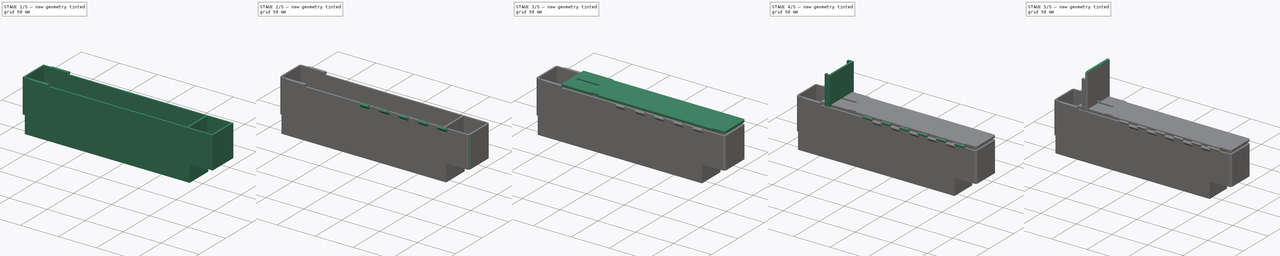
[diagram: build sequence overview — one tinted view per stage of 5, left to right]
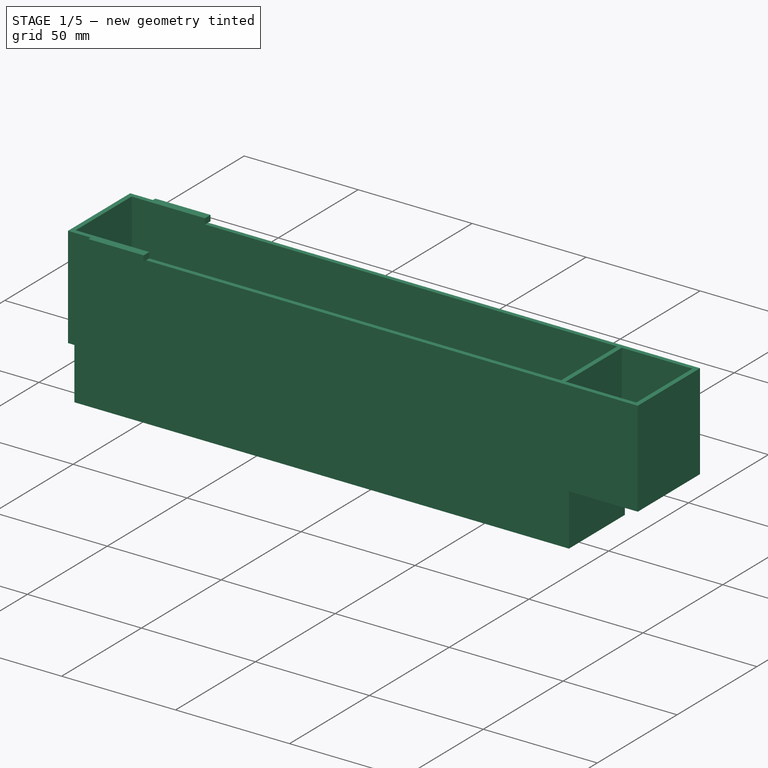
[diagram: stage 1 of 5 — iso view after this stage's code; geometry added in this stage tinted green]
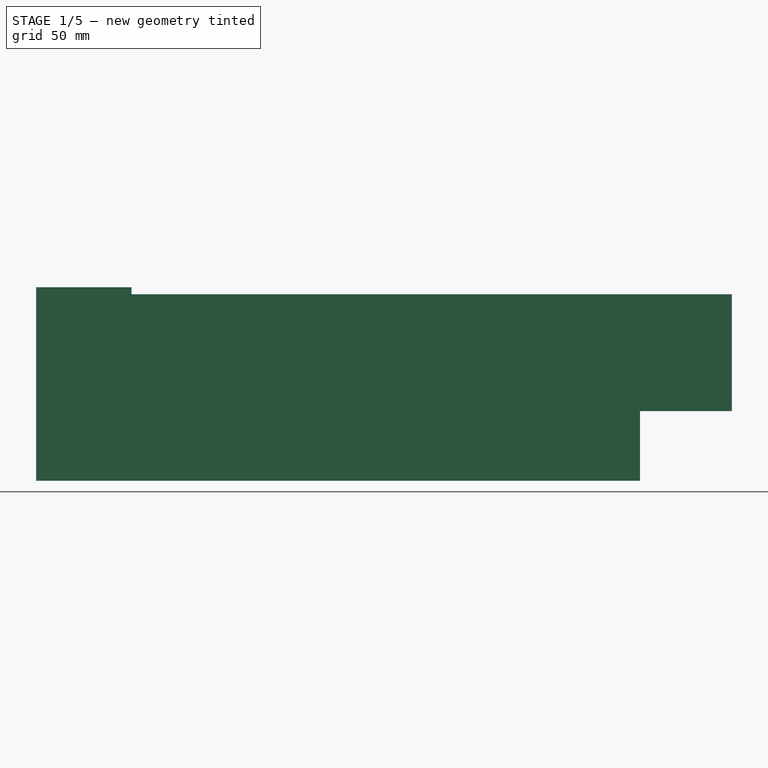
[diagram: stage 1 of 5 — front view after this stage's code; geometry added in this stage tinted green]
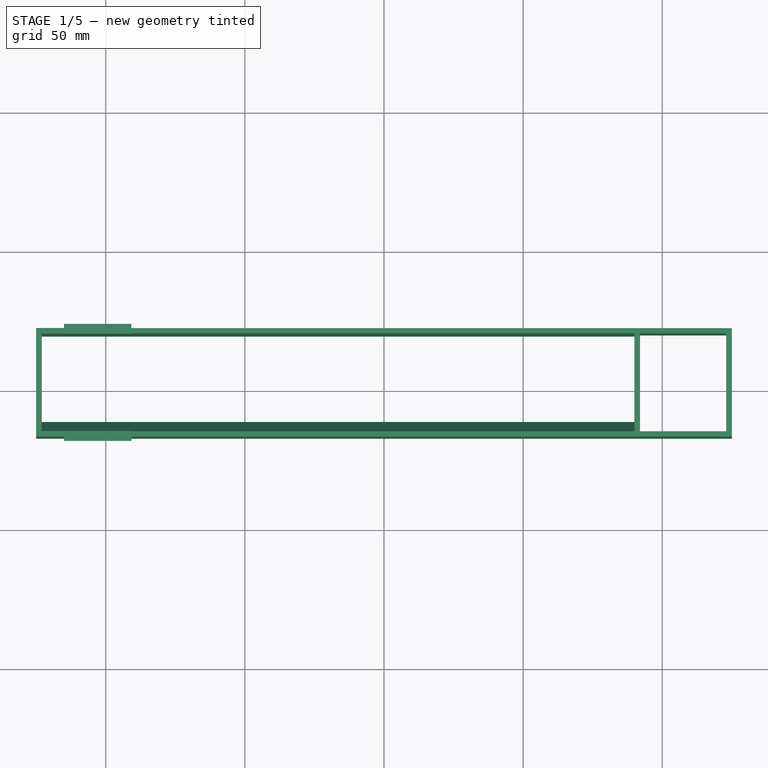
[diagram: stage 1 of 5 — top view after this stage's code; geometry added in this stage tinted green]
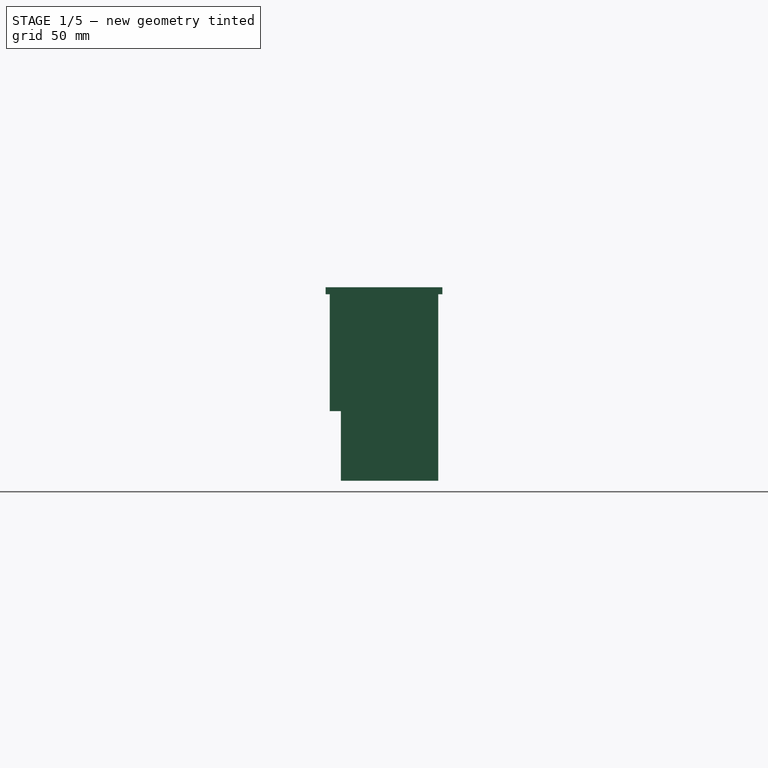
[diagram: stage 1 of 5 — right view after this stage's code; geometry added in this stage tinted green]
FCSTD DOCUMENT  (FreeCAD 0.20R29603 (Git))
Label: mapBox
License: All rights reserved
LicenseURL: http://en.wikipedia.org/wiki/All_rights_reserved
objects: Sketcher::SketchObject×12, PartDesign::Pad×9, PartDesign::Fillet×5, Part::Part2DObjectPython×3, PartDesign::Body×3, PartDesign::LinearPattern×2, Spreadsheet::Sheet×1, PartDesign::Hole×1, PartDesign::Pocket×1, PartDesign::Plane×1, PartDesign::SubtractiveBox×1
note: 55 computed .brp shape members not serialized (recipe doc carries the construction recipe); baked Part::Feature solids carry a one-line shape summary decoded from their .brp

FEATURE [Part::Part2DObjectPython] Clone2D002  label="mastersketch (2D)002"  # Draft 2D object (typed FeaturePython)
  Fuse = false
  Objects = -> [Sketch]
  Scale = (1,1,1)
FEATURE [Sketcher::SketchObject] Sketch005
  ExternalGeometry = -> [Clone2D002]
  FullyConstrained = true
  MapMode = 5
  Support = -> [XY_Plane002]
  expr: Constraints[10] = <<data>>.lidAnchorWidth
  expr: Constraints[11] = <<data>>.bodyWallWidth
  expr: Constraints[14] = <<data>>.bodyWallWidth
  expr: Constraints[31] = <<data>>.lidLockLength - <<data>>.lidLockAnchorLength
  sketch-geometry (14):
    g0: LineSegment StartX=-115 StartY=-19 StartZ=0 EndX=-90.75 EndY=-19 EndZ=0
    g1: LineSegment StartX=-90.75 StartY=-19 StartZ=0 EndX=-90.75 EndY=-17.5 EndZ=0
    g2: LineSegment StartX=-90.8 StartY=21.5 StartZ=0 EndX=-90.8 EndY=23 EndZ=0
    g3: LineSegment StartX=-90.8 StartY=23 StartZ=0 EndX=-115 EndY=23 EndZ=0
    g4: LineSegment StartX=-125 StartY=21.5 StartZ=0 EndX=-125 EndY=-17.5 EndZ=0
    g5: LineSegment StartX=-123 StartY=-15.5 StartZ=0 EndX=-123 EndY=19.5 EndZ=0
    g6: LineSegment StartX=-123 StartY=19.5 StartZ=0 EndX=-90.8 EndY=19.5 EndZ=0
    g7: LineSegment StartX=-90.8 StartY=19.5 StartZ=0 EndX=-90.8 EndY=21.5 EndZ=0
    g8: LineSegment StartX=-123 StartY=-15.5 StartZ=0 EndX=-90.75 EndY=-15.5 EndZ=0
    g9: LineSegment StartX=-90.75 StartY=-15.5 StartZ=0 EndX=-90.75 EndY=-17.5 EndZ=0
    g10: LineSegment StartX=-125 StartY=-17.5 StartZ=0 EndX=-115 EndY=-17.5 EndZ=0
    g11: LineSegment StartX=-115 StartY=-17.5 StartZ=0 EndX=-115 EndY=-19 EndZ=0
    g12: LineSegment StartX=-115 StartY=23 StartZ=0 EndX=-115 EndY=21.5 EndZ=0
    g13: LineSegment StartX=-115 StartY=21.5 StartZ=0 EndX=-125 EndY=21.5 EndZ=0
  constraints (40):
    c: Horizontal(g0)
    c: Coincident(g0,g1)
    c: PointOnObject(g1,g-6)
    c: Vertical(g1)
    c: PointOnObject(g2,g-5)
    c: Vertical(g2)
    c: Coincident(g2,g3)
    c: Horizontal(g3)
    c: Vertical(g4)
    c: Equal(g1,g2)
    c: DistanceY(g1,g1) = 1.5
    c: DistanceX(g-5,g5) = 2
    c: DistanceX(g2,g-3) = 0.8
    c: Symmetric(g5,g5,g-7)
    c: DistanceY(g-6,g5) = 2
    c: Coincident(g5,g6)
    c: Horizontal(g6)
    c: Coincident(g6,g7)
    c: Coincident(g7,g2)
    c: Vertical(g7)
    c: Coincident(g5,g8)
    c: Horizontal(g8)
    c: Coincident(g8,g9)
    c: Coincident(g9,g1)
    c: Vertical(g9)
    c: Coincident(g-6,g10)
    c: PointOnObject(g10,g-6)
    c: Coincident(g10,g11)
    c: Vertical(g11)
    c: Coincident(g0,g11)
    c: DistanceX(g0,g-3) = 0.75
    c: DistanceX(g10,g10) = 10
    c: PointOnObject(g12,g-5)
    c: Vertical(g12)
    c: Coincident(g12,g13)
    c: Coincident(g13,g-5)
    c: Coincident(g4,g10)
    c: Coincident(g3,g12)
    c: PointOnObject(g4,g13)
    c: Vertical(g10,g12)
FEATURE [PartDesign::Pad] Pad003  label="TopWitchAnchor"
  Direction = (0,0,1)
  Length = 2.5
  Length2 = 10
  Profile = -> Sketch005
  ReferenceAxis = -> Sketch005 [N_Axis]
  Reversed = true
  Type = 0
  expr: Length = <<data>>.lidAnchorThickness
FEATURE [Sketcher::SketchObject] Sketch006
  AttachmentOffset = pos=(0,0,-2.5) rot=(0,0,1;0rad)
  ExternalGeometry = -> [Pad003,Clone2D002]
  FullyConstrained = false
  MapMode = 5
  Placement = pos=(0,0,-2.5) rot=(0,0,1;0rad)
  Support = -> [XY_Plane002]
  expr: .AttachmentOffset.Base.z = <<data>>.lidThickness * -1
  expr: Constraints[18] = <<data>>.bodyWallWidth
  sketch-geometry (12):
    g0: LineSegment StartX=125 StartY=21.5 StartZ=0 EndX=-125 EndY=21.5 EndZ=0
    g1: LineSegment StartX=-125 StartY=21.5 StartZ=0 EndX=-125 EndY=-17.5 EndZ=0
    g2: LineSegment StartX=-125 StartY=-17.5 StartZ=0 EndX=125 EndY=-17.5 EndZ=0
    g3: LineSegment StartX=125 StartY=-17.5 StartZ=0 EndX=125 EndY=21.5 EndZ=0
    g4: LineSegment StartX=123 StartY=19.6154 StartZ=0 EndX=92 EndY=19.6154 EndZ=0
    g5: LineSegment StartX=-123 StartY=19.6154 StartZ=0 EndX=-123 EndY=-15.5493 EndZ=0
    g6: LineSegment StartX=-123 StartY=-15.5493 StartZ=0 EndX=90 EndY=-15.5493 EndZ=0
    g7: LineSegment StartX=123 StartY=-15.5493 StartZ=0 EndX=123 EndY=19.6154 EndZ=0
    g8: LineSegment StartX=92 StartY=-15.5493 StartZ=0 EndX=92 EndY=19.6154 EndZ=0
    g9: LineSegment StartX=90 StartY=-15.5493 StartZ=0 EndX=90 EndY=19.6154 EndZ=0
    g10: LineSegment StartX=90 StartY=19.6154 StartZ=0 EndX=-123 EndY=19.6154 EndZ=0
    g11: LineSegment StartX=92 StartY=-15.5493 StartZ=0 EndX=123 EndY=-15.5493 EndZ=0
  constraints (23):
    c: Coincident(g0,g1)
    c: Coincident(g1,g2)
    c: Coincident(g2,g3)
    c: Coincident(g3,g0)
    c: Horizontal(g0)
    c: Horizontal(g2)
    c: Vertical(g1)
    c: Coincident(g10,g5)
    c: Coincident(g5,g6)
    c: Coincident(g11,g7)
    c: Coincident(g7,g4)
    c: Horizontal(g4)
    c: Horizontal(g6)
    c: Vertical(g5)
    c: Vertical(g7)
    c: Vertical(g8)
    c: PointOnObject(g8,g-6)
    c: Vertical(g9)
    c: DistanceX(g9,g8) = 2
    c: Coincident(g4,g8)
    c: Coincident(g10,g9)
    c: Coincident(g6,g9)
    c: Coincident(g11,g8)
FEATURE [PartDesign::Pad] Pad004  label="Pad004_Sidewalls"
  BaseFeature = -> Pad003
  Direction = (0,0,1)
  Length = 42
  Length2 = 10
  Profile = -> Sketch006
  ReferenceAxis = -> Sketch006 [N_Axis]
  Reversed = true
  Type = 0
  expr: Length = <<data>>.bodyHeight
FEATURE [PartDesign::Body] Body001  label="Lid"
  Group = -> [Clone2D001,Sketch004,Pad002,Fillet002,Fillet004,Sketch007,Pocket,Sketch008,Pad005,LinearPattern]
  Origin = -> Origin001
  Placement = pos=(0,-1e-15,-2.5) rot=(0,0,1;0rad)
  Tip = -> LinearPattern
FEATURE [PartDesign::Plane] DatumPlane
  AttachmentOffset = pos=(0,0,-44.5) rot=(0,0,1;0rad)
  Length = 272.361
  MapMode = 5
  Placement = pos=(0,0,-44.5) rot=(0,0,1;0rad)
  ResizeMode = 0
  Support = -> [XY_Plane002]
  Width = 72.3607
  expr: .AttachmentOffset.Base.z = -1 * (<<data>>.bodyHeight + <<data>>.lidAnchorThickness)
FEATURE [Sketcher::SketchObject] Sketch009
  AttachmentOffset = pos=(0,0,90) rot=(0,0,1;0rad)
  ExternalGeometry = -> [Pad004,Clone2D002]
  FullyConstrained = true
  MapMode = 5
  Placement = pos=(90,-2e-14,2e-14) rot=(0.57735,0.57735,0.57735;2.0944rad)
  Support = -> [YZ_Plane002]
  expr: Constraints[9] = <<data>>.bodyWallWidth
  sketch-geometry (4):
    g0: LineSegment StartX=-13.5 StartY=0 StartZ=0 EndX=-13.5 EndY=-44.5 EndZ=0
    g1: LineSegment StartX=-15.5493 StartY=-44.5 StartZ=0 EndX=-11.5 EndY=-44.5 EndZ=0
    g2: LineSegment StartX=-11.5 StartY=-44.5 StartZ=0 EndX=-15.5493 EndY=-39.6743 EndZ=0
    g3: LineSegment StartX=-15.5493 StartY=-39.6743 StartZ=0 EndX=-15.5493 EndY=-44.5 EndZ=0
  constraints (11):
    c: Coincident(g0,g-4)
    c: PointOnObject(g0,g-3)
    c: Vertical(g0)
    c: Coincident(g-3,g1)
    c: PointOnObject(g1,g-3)
    c: Coincident(g1,g2)
    c: Coincident(g2,g3)
    c: Coincident(g3,g1)
    c: Vertical(g3)
    c: DistanceX(g0,g1) = 2
    c: Angle(g3,g2) = 0.698132
FEATURE [PartDesign::Pad] Pad006  label="Pad006_SlantedEdge"
  BaseFeature = -> Pad004
  Direction = (1,-2e-16,3e-16)
  Length = 214
  Length2 = 10
  Profile = -> Sketch009
  ReferenceAxis = -> Sketch009 [N_Axis]
  Refine = true
  Reversed = true
  Type = 0
FEATURE [Sketcher::SketchObject] Sketch010
  ExternalGeometry = -> [Clone2D002,Pad006]
  FullyConstrained = true
  MapMode = 5
  Placement = pos=(0,0,-44.5) rot=(0,0,1;0rad)
  Support = -> [DatumPlane]
  sketch-geometry (8):
    g0: LineSegment StartX=-125 StartY=21.5 StartZ=0 EndX=92 EndY=21.5 EndZ=0
    g1: LineSegment StartX=92 StartY=21.5 StartZ=0 EndX=92 EndY=-13.5 EndZ=0
    g2: LineSegment StartX=92 StartY=-13.5 StartZ=0 EndX=-125 EndY=-13.5 EndZ=0
    g3: LineSegment StartX=-125 StartY=-13.5 StartZ=0 EndX=-125 EndY=21.5 EndZ=0
    g4: LineSegment StartX=90 StartY=-11.5 StartZ=0 EndX=-123 EndY=-11.5 EndZ=0
    g5: LineSegment StartX=-123 StartY=-11.5 StartZ=0 EndX=-123 EndY=19.6154 EndZ=0
    g6: LineSegment StartX=-123 StartY=19.6154 StartZ=0 EndX=90 EndY=19.6154 EndZ=0
    g7: LineSegment StartX=90 StartY=19.6154 StartZ=0 EndX=90 EndY=-11.5 EndZ=0
  constraints (19):
    c: Coincident(g0,g1)
    c: Coincident(g1,g2)
    c: Coincident(g2,g3)
    c: Coincident(g3,g0)
    c: Horizontal(g0)
    c: Horizontal(g2)
    c: Vertical(g1)
    c: Vertical(g3)
    c: Coincident(g0,g-5)
    c: Coincident(g1,g-3)
    c: Coincident(g4,g5)
    c: Coincident(g5,g6)
    c: Coincident(g6,g7)
    c: Coincident(g7,g4)
    c: Horizontal(g6)
    c: Vertical(g5)
    c: Coincident(g4,g-4)
    c: Coincident(g4,g-4)
    c: Coincident(g6,g-7)
FEATURE [PartDesign::Pad] Pad007  label="BottomInset"
  BaseFeature = -> Pad006
  Direction = (0,0,1)
  Length = 25
  Length2 = 10
  Profile = -> Sketch010
  ReferenceAxis = -> Sketch010 [N_Axis]
  Reversed = true
  Type = 0
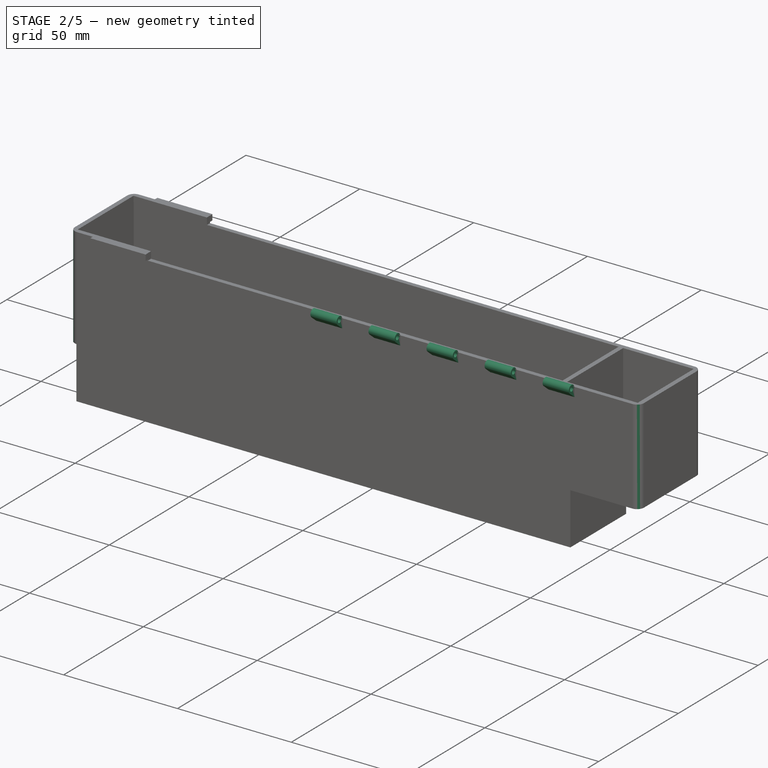
[diagram: stage 2 of 5 — iso view after this stage's code; geometry added in this stage tinted green]
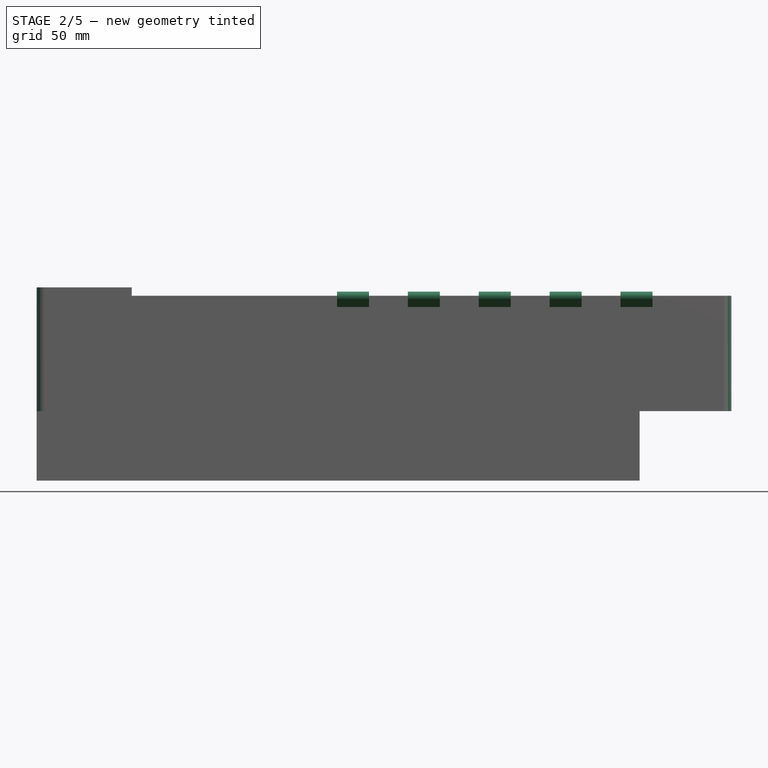
[diagram: stage 2 of 5 — front view after this stage's code; geometry added in this stage tinted green]
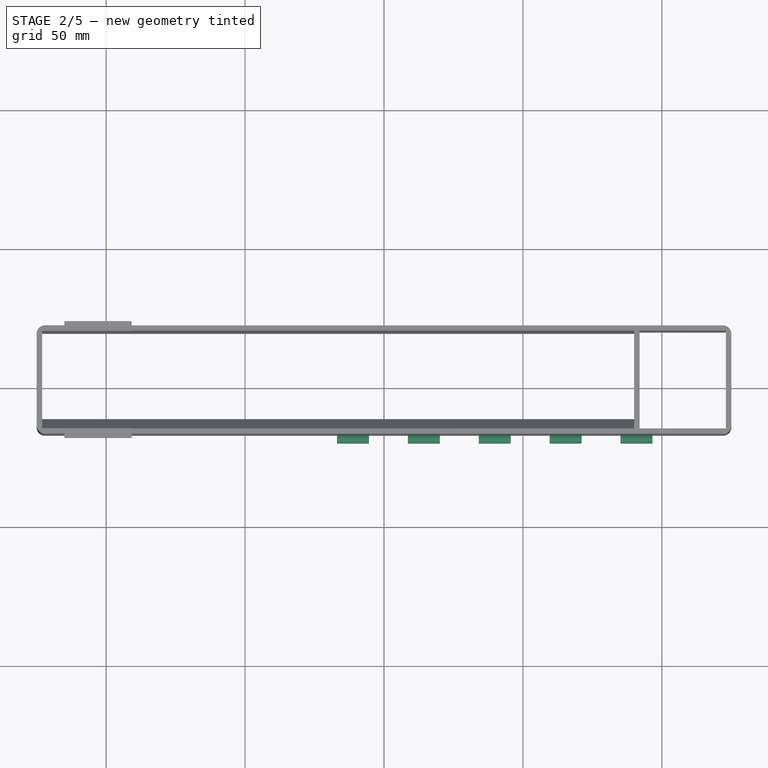
[diagram: stage 2 of 5 — top view after this stage's code; geometry added in this stage tinted green]
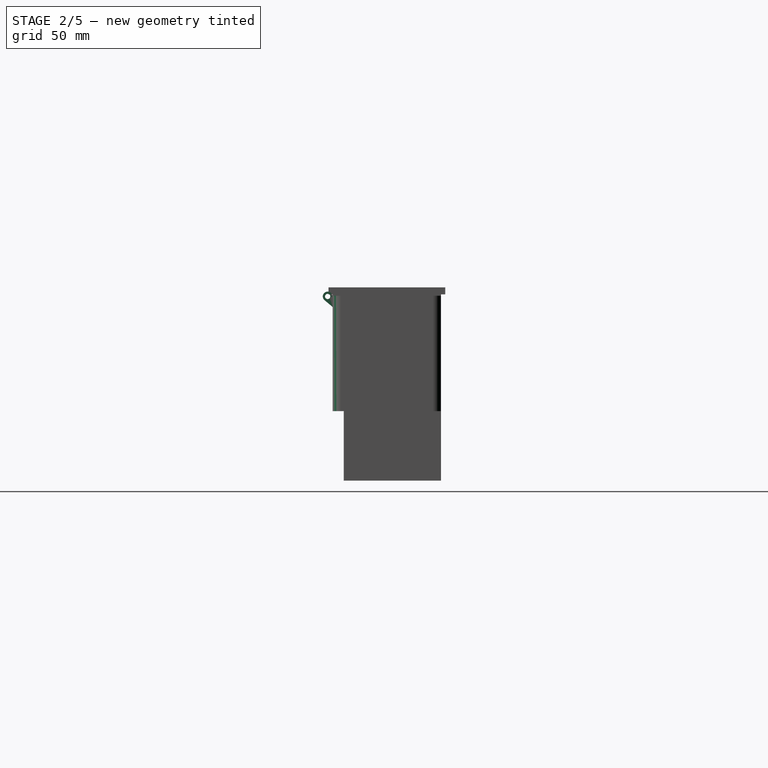
[diagram: stage 2 of 5 — right view after this stage's code; geometry added in this stage tinted green]
FEATURE [PartDesign::Fillet] Fillet005  label="Fillet005_Edges"
  Base = -> Pad007 [Edge65,Edge57,Edge63,Edge60]
  BaseFeature = -> Pad007
  Radius = 3
  SupportTransform = false
  UseAllEdges = false
FEATURE [Sketcher::SketchObject] Sketch011
  AttachmentOffset = pos=(0,0,85.1) rot=(0,0,1;0rad)
  ExternalGeometry = -> [Fillet005]
  FullyConstrained = true
  MapMode = 5
  Placement = pos=(85.1,-1.89e-14,1.89e-14) rot=(0.57735,0.57735,0.57735;2.0944rad)
  Support = -> [YZ_Plane002]
  sketch-geometry (5):
    g0: ArcOfCircle CenterX=-19.3 CenterY=-3.25 CenterZ=0 NormalX=0 NormalY=0 NormalZ=1 AngleXU=0 Radius=1.75 StartAngle=0.410961 EndAngle=4.01426
    g1: Circle CenterX=-19.3 CenterY=-3.25 CenterZ=0 NormalX=0 NormalY=0 NormalZ=1 AngleXU=0 Radius=0.95
    g2: LineSegment StartX=-17.5 StartY=-3 StartZ=0 EndX=-17.5 EndY=-7.04484 EndZ=0
    g3: LineSegment StartX=-17.5 StartY=-7.04484 StartZ=0 EndX=-20.4249 EndY=-4.59058 EndZ=0
    g4: LineSegment StartX=-17.5 StartY=-3 StartZ=0 EndX=-17.6957 EndY=-2.55089 EndZ=0
  constraints (13):
    c: Coincident(g1,g0)
    c: Diameter(g1) = 1.9
    c: Diameter(g0) = 3.5
    c: DistanceY(g0,g-5) = 0.75
    c: DistanceX(g0,g-5) = 0.3
    c: PointOnObject(g2,g-3)
    c: Coincident(g2,g3)
    c: Tangent(g0,g3) = 1.5708
    c: Tangent(g0,g4) = -1.5708
    c: Angle(g2,g3) = 0.872665
    c: Coincident(g2,g4)
    c: Vertical(g2,g-5)
    c: DistanceY(g2,g-5) = 0.5
FEATURE [PartDesign::Pad] Pad008  label="Pad008_hinge"
  BaseFeature = -> Fillet005
  Direction = (1,-2e-16,3e-16)
  Length = 11.5
  Length2 = 10
  Profile = -> Sketch011
  ReferenceAxis = -> Sketch011 [N_Axis]
  Type = 0
FEATURE [PartDesign::LinearPattern] LinearPattern001
  BaseFeature = -> Pad008
  Direction = -> Sketch011 [N_Axis]
  Length = 102
  Occurrences = 5
  Originals = -> [Pad008]
  Reversed = true
FEATURE [PartDesign::SubtractiveBox] Box
  AttacherType = Attacher::AttachEngine3D
  AttachmentOffset = pos=(-90.8,-17.5,-3) rot=(0,0,1;0rad)
  BaseFeature = -> LinearPattern001
  Height = 10
  Length = 240
  MapMode = 5
  Placement = pos=(-90.8,-17.5,-3) rot=(0,0,1;0rad)
  Refine = true
  Support = -> [XY_Plane002]
  Width = 50
FEATURE [PartDesign::Body] Body002  label="Mainbody"
  Group = -> [Clone2D002,Sketch005,Pad003,Sketch006,Pad004,DatumPlane,Sketch009,Pad006,Sketch010,Pad007,Fillet005,Sketch011,Pad008,LinearPattern001,Box]
  Origin = -> Origin002
  Tip = -> Box
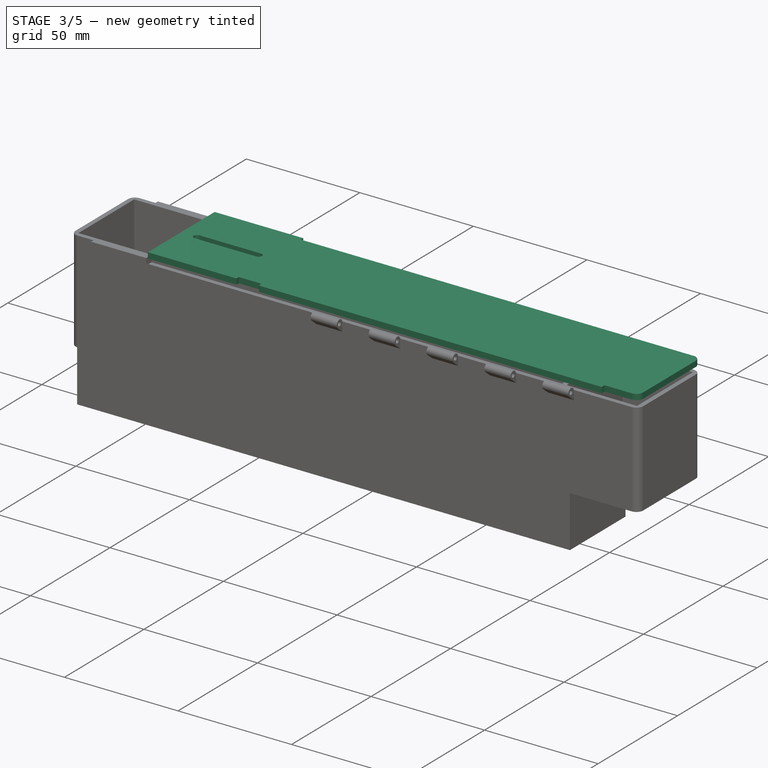
[diagram: stage 3 of 5 — iso view after this stage's code; geometry added in this stage tinted green]
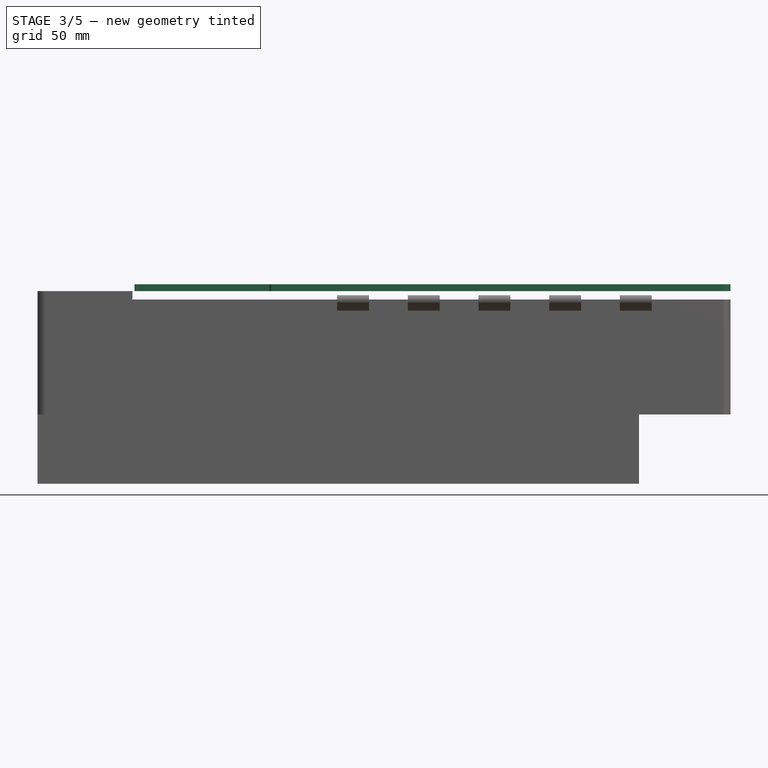
[diagram: stage 3 of 5 — front view after this stage's code; geometry added in this stage tinted green]
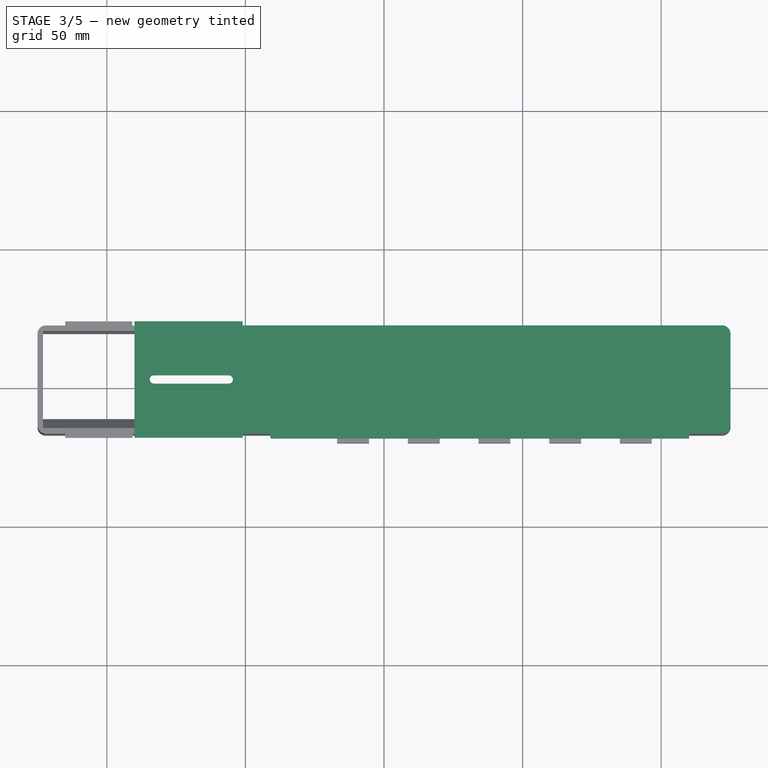
[diagram: stage 3 of 5 — top view after this stage's code; geometry added in this stage tinted green]
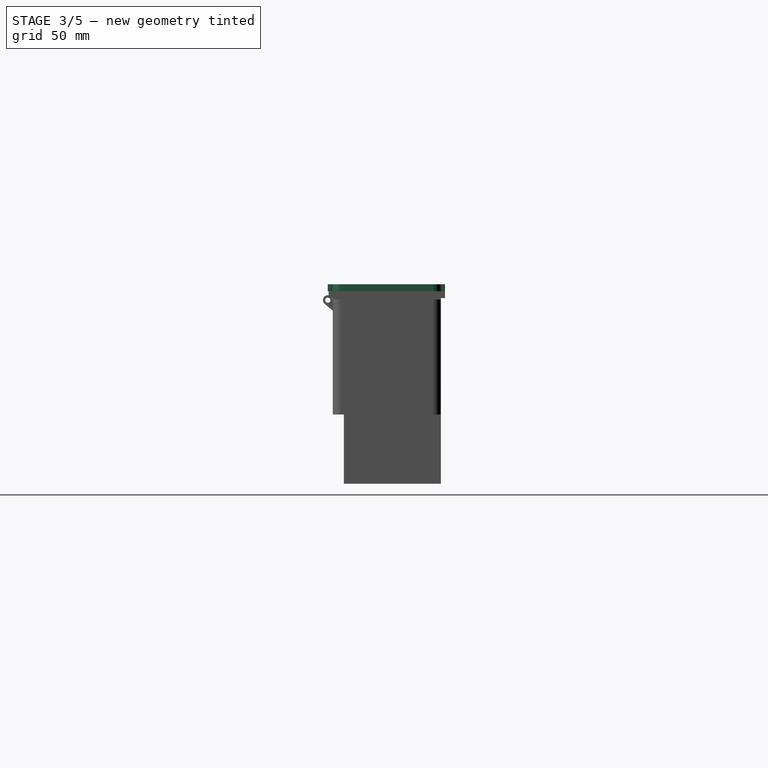
[diagram: stage 3 of 5 — right view after this stage's code; geometry added in this stage tinted green]
FEATURE [PartDesign::Body] Body  label="LidLock"
  Group = -> [Clone2D,Sketch001,Pad,Sketch002,Pad001,Fillet,Fillet001,Sketch003,Hole]
  Origin = -> Origin
  Tip = -> Hole
FEATURE [Part::Part2DObjectPython] Clone2D001  label="mastersketch (2D)001"  # Draft 2D object (typed FeaturePython)
  Fuse = false
  Objects = -> [Sketch]
  Scale = (1,1,1)
FEATURE [Sketcher::SketchObject] Sketch004
  ExternalGeometry = -> [Clone2D001]
  FullyConstrained = true
  MapMode = 5
  Support = -> [XY_Plane001]
  expr: Constraints[16] = <<data>>.lidAnchorWidth
  sketch-geometry (17):
    g0: LineSegment StartX=125 StartY=-17.5 StartZ=0 EndX=110.079 EndY=-17.5 EndZ=0
    g1: LineSegment StartX=125 StartY=21.5 StartZ=0 EndX=125 EndY=-17.5 EndZ=0
    g2: LineSegment StartX=-51 StartY=21.5 StartZ=0 EndX=-51 EndY=23 EndZ=0
    g3: LineSegment StartX=-51 StartY=23 StartZ=0 EndX=-90 EndY=23 EndZ=0
    g4: LineSegment StartX=-51 StartY=-17.5 StartZ=0 EndX=-51 EndY=-19 EndZ=0
    g5: LineSegment StartX=-51 StartY=-19 StartZ=0 EndX=-90 EndY=-19 EndZ=0
    g6: LineSegment StartX=-90 StartY=-19 StartZ=0 EndX=-90 EndY=23 EndZ=0
    g7: LineSegment StartX=-51 StartY=21.5 StartZ=0 EndX=125 EndY=21.5 EndZ=0
    g8: ArcOfCircle CenterX=-83 CenterY=2 CenterZ=0 NormalX=0 NormalY=0 NormalZ=1 AngleXU=0 Radius=1.5 StartAngle=1.5708 EndAngle=4.71239
    g9: ArcOfCircle CenterX=-56 CenterY=2 CenterZ=0 NormalX=0 NormalY=0 NormalZ=1 AngleXU=0 Radius=1.5 StartAngle=4.71239 EndAngle=7.85398
    g10: LineSegment StartX=-83 StartY=0.5 StartZ=0 EndX=-56 EndY=0.5 EndZ=0
    g11: LineSegment StartX=-56 StartY=3.5 StartZ=0 EndX=-83 EndY=3.5 EndZ=0
    g12: LineSegment StartX=-51 StartY=21.5 StartZ=0 EndX=-51 EndY=-17.5 EndZ=0
    g13: LineSegment StartX=110.079 StartY=-17.5 StartZ=0 EndX=110.079 EndY=-19.3 EndZ=0
    g14: LineSegment StartX=110.079 StartY=-19.3 StartZ=0 EndX=-41 EndY=-19.3 EndZ=0
    g15: LineSegment StartX=-41 StartY=-19.3 StartZ=0 EndX=-41 EndY=-17.5 EndZ=0
    g16: LineSegment StartX=-41 StartY=-17.5 StartZ=0 EndX=-51 EndY=-17.5 EndZ=0
  constraints (47):
    c: DistanceX(g-3,g-6) = 35
    c: Horizontal(g0)
    c: Coincident(g7,g1)
    c: Coincident(g7,g-3)
    c: Coincident(g0,g1)
    c: Coincident(g0,g-5)
    c: Coincident(g2,g3)
    c: Horizontal(g3)
    c: Vertical(g2)
    c: Coincident(g4,g5)
    c: Coincident(g5,g6)
    c: Horizontal(g5)
    c: Vertical(g4)
    c: Vertical(g6)
    c: Equal(g5,g3)
    c: Equal(g2,g4)
    c: DistanceY(g2,g2) = 1.5
    c: DistanceX(g-7,g2) = 24
    c: Coincident(g16,g4)
    c: Coincident(g2,g7)
    c: PointOnObject(g2,g-3)
    c: PointOnObject(g3,g-6)
    c: Coincident(g3,g6)
    c: Tangent(g8,g10) = -1.5708
    c: Tangent(g10,g9) = -1.5708
    c: Tangent(g9,g11) = -1.5708
    c: Tangent(g11,g8) = -1.5708
    c: Equal(g8,g9)
    c: PointOnObject(g8,g-8)
    c: PointOnObject(g9,g-8)
    c: Radius(g9) = 1.5
    c: DistanceX(g8,g-7) = 8
    c: Coincident(g12,g2)
    c: Coincident(g12,g16)
    c: DistanceX(g11,g11) = 27
    c: Vertical(g13)
    c: Coincident(g13,g14)
    c: Horizontal(g14)
    c: Coincident(g14,g15)
    c: Vertical(g15)
    c: DistanceX(g4,g14) = 10
    c: Coincident(g16,g15)
    c: Coincident(g0,g13)
    c: PointOnObject(g4,g-4)
    c: PointOnObject(g15,g-4)
    c: PointOnObject(g0,g-9)
    c: DistanceY(g15,g15) = 1.8
FEATURE [PartDesign::Pad] Pad002
  Direction = (0,0,1)
  Length = 2.5
  Length2 = 10
  Profile = -> Sketch004
  ReferenceAxis = -> Sketch004 [N_Axis]
  Type = 0
  expr: Length = <<data>>.lidThickness
FEATURE [PartDesign::Fillet] Fillet002
  Base = -> Pad002 [Edge14,Edge17]
  BaseFeature = -> Pad002
  Radius = 0.5
  SupportTransform = false
  UseAllEdges = false
FEATURE [PartDesign::Fillet] Fillet004
  Base = -> Fillet002 [Edge44,Edge42]
  BaseFeature = -> Fillet002
  Radius = 3
  SupportTransform = false
  UseAllEdges = false
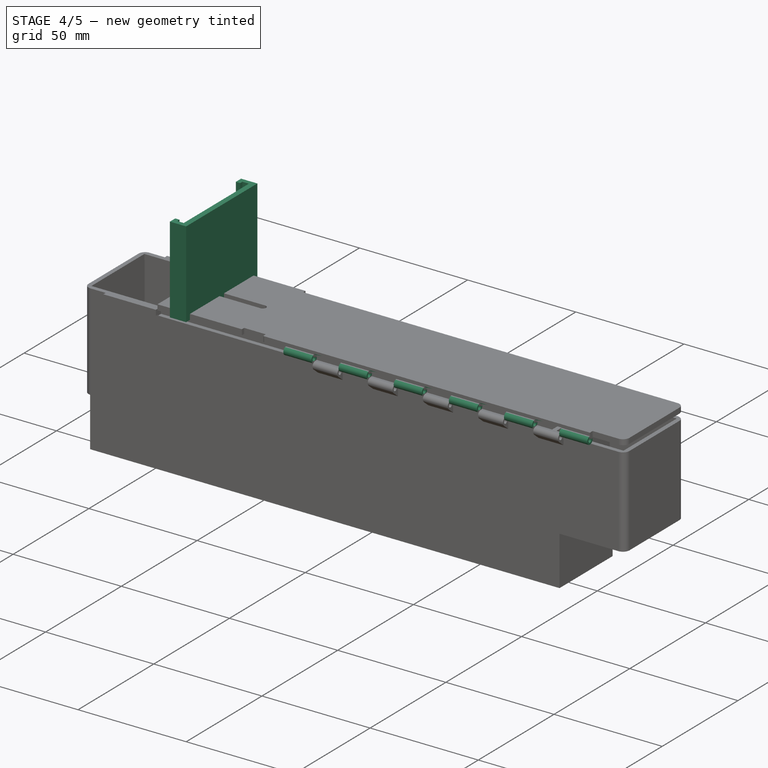
[diagram: stage 4 of 5 — iso view after this stage's code; geometry added in this stage tinted green]
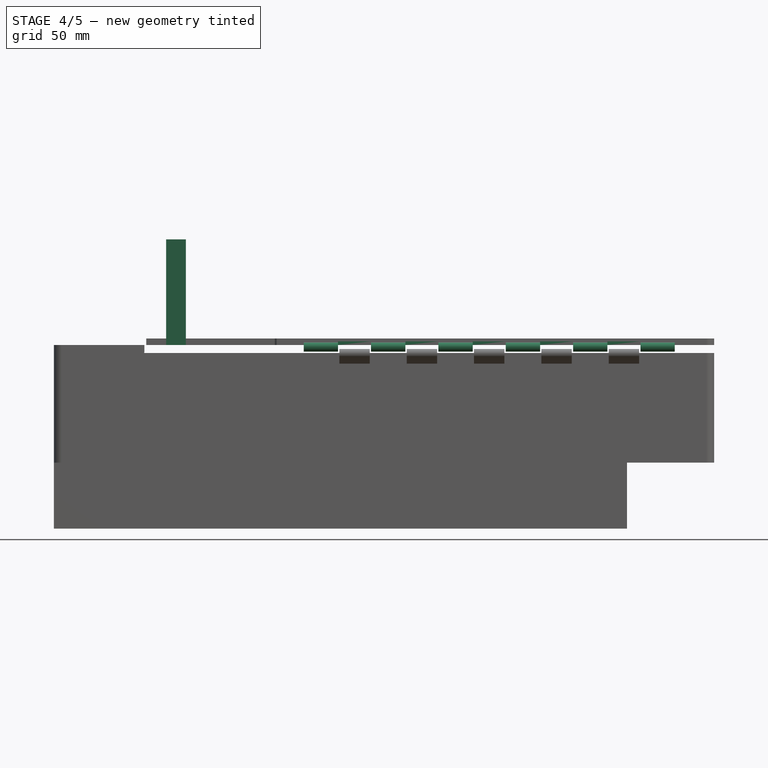
[diagram: stage 4 of 5 — front view after this stage's code; geometry added in this stage tinted green]
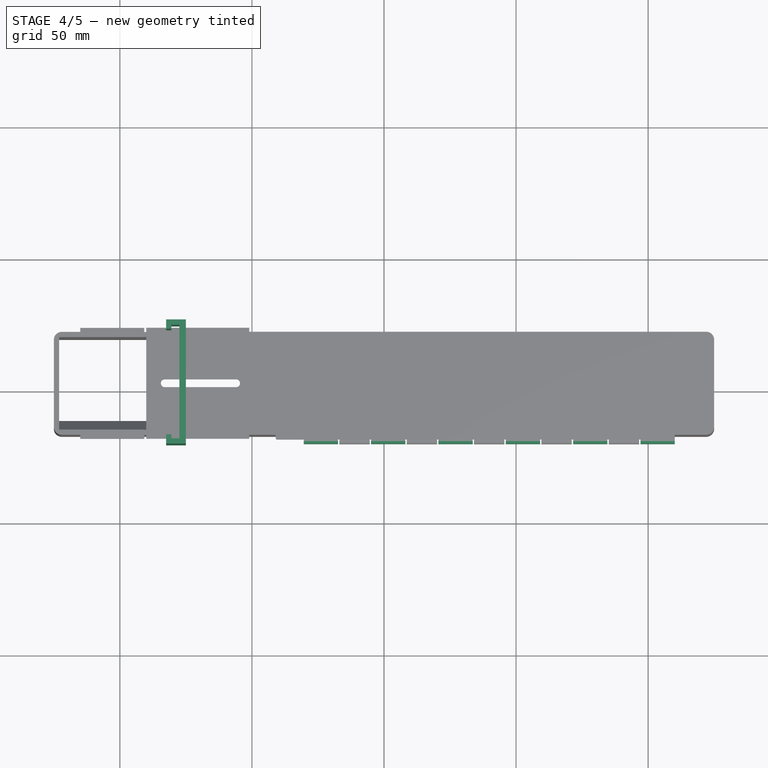
[diagram: stage 4 of 5 — top view after this stage's code; geometry added in this stage tinted green]
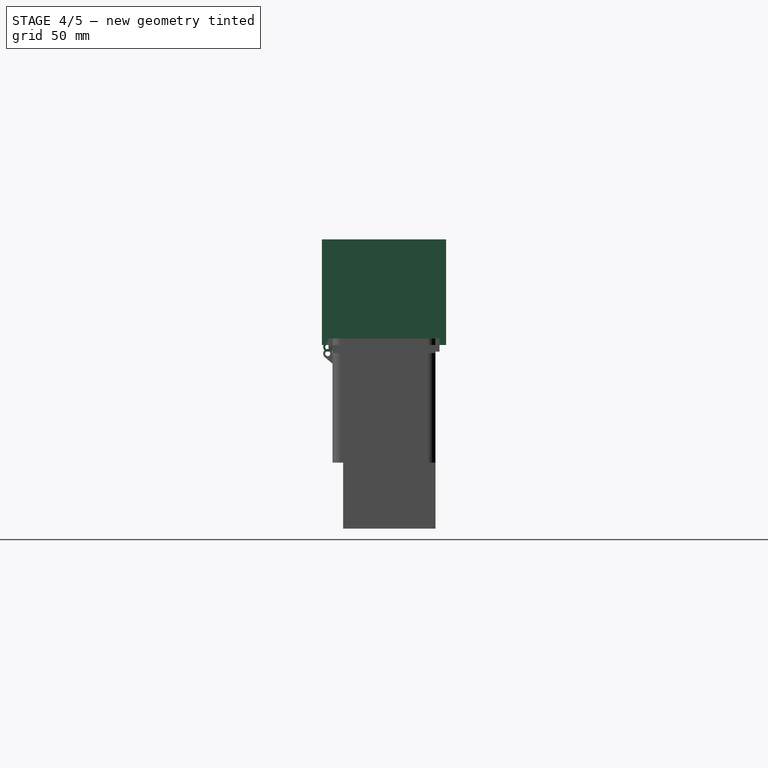
[diagram: stage 4 of 5 — right view after this stage's code; geometry added in this stage tinted green]
FEATURE [Spreadsheet::Sheet] Spreadsheet  label="data"
  cells = A1=totalWidth; B1(totalWidth)=43; A2=insideWidth; B2(insideWidth)=35; A3=totalLength; B3(totalLength)=250; A4=insideLength; B4(insideLength)=217; C4=up to rib; A5=bodyHeight; B5(bodyHeight)=42; A6=bodyWallWidth; B6(bodyWallWidth)=2; A8=lidWidth; B8(lidWidth)=; A9=lidLength; B9(lidLength)=; A10=lidThickness; B10(lidThickness)==lidAnchorThickness; A11=lidAnchorLength; B11(lidAnchorLength)=40; A12=lidAnchorWidth; B12(lidAnchorWidth)=1.5; A13=lidAnchorThickness; B13(lidAnchorThickness)=2.5; A14=lidLockLength; B14(lidLockLength)=50; A15=lidLockThickness; B15(lidLockThickness)=; A16=lidLockAnchorLength; B16(lidLockAnchorLength)=40; A23=boxLength; B23(boxLength)=; A24=boxThickness; B24(boxThickness)=
FEATURE [Sketcher::SketchObject] Sketch  label="mastersketch"
  FullyConstrained = false
  expr: Constraints[10] = <<data>>.totalLength
  expr: Constraints[14] = <<data>>.insideLength
  expr: Constraints[18] = <<data>>.insideWidth
  expr: Constraints[9] = <<data>>.totalWidth
  sketch-geometry (46):
    g0: LineSegment StartX=-125 StartY=21.5 StartZ=0 EndX=125 EndY=21.5 EndZ=0
    g1: LineSegment StartX=125 StartY=21.5 StartZ=0 EndX=125 EndY=-21.5 EndZ=0
    g2: LineSegment StartX=125 StartY=-21.5 StartZ=0 EndX=-125 EndY=-21.5 EndZ=0
    g3: LineSegment StartX=-125 StartY=-21.5 StartZ=0 EndX=-125 EndY=21.5 EndZ=0
    g4: LineSegment StartX=92 StartY=21.5 StartZ=0 EndX=92 EndY=-21.5 EndZ=0
    g5: LineSegment StartX=-125 StartY=-13.5 StartZ=0 EndX=92 EndY=-13.5 EndZ=0
    g6: LineSegment StartX=-125 StartY=-17.5 StartZ=0 EndX=92 EndY=-17.5 EndZ=0
    g7: LineSegment StartX=-125 StartY=21.5 StartZ=0 EndX=92 EndY=21.5 EndZ=0
    g8: LineSegment StartX=92 StartY=21.5 StartZ=0 EndX=92 EndY=25.5 EndZ=0
    g9: LineSegment StartX=92 StartY=25.5 StartZ=0 EndX=-125 EndY=25.5 EndZ=0
    g10: LineSegment StartX=-125 StartY=25.5 StartZ=0 EndX=-125 EndY=21.5 EndZ=0
    g11: LineSegment StartX=-125 StartY=-13.5 StartZ=0 EndX=-125 EndY=21.5 EndZ=0
    g12: LineSegment StartX=-75 StartY=25.5 StartZ=0 EndX=-75 EndY=-21.5 EndZ=0
    g13: LineSegment StartX=-90 StartY=25.5 StartZ=0 EndX=-90 EndY=-21.5 EndZ=0
    g14: LineSegment StartX=-125 StartY=2 StartZ=0 EndX=92 EndY=2 EndZ=0
    g15: LineSegment StartX=-125 StartY=21.5 StartZ=0 EndX=-135 EndY=21.5 EndZ=0
    g16: LineSegment StartX=-135 StartY=21.5 StartZ=0 EndX=-135 EndY=-17.5 EndZ=0
    g17: LineSegment StartX=-135 StartY=-17.5 StartZ=0 EndX=-125 EndY=-17.5 EndZ=0
    g18: LineSegment StartX=-125 StartY=-17.5 StartZ=0 EndX=-125 EndY=21.5 EndZ=0
    g19: LineSegment StartX=110.079 StartY=-21.5 StartZ=0 EndX=110.079 EndY=-13.5 EndZ=0
    g20: LineSegment StartX=97.079 StartY=-21.5 StartZ=0 EndX=97.079 EndY=-13.5 EndZ=0
    g21: LineSegment StartX=84.579 StartY=-21.5 StartZ=0 EndX=84.579 EndY=-13.5 EndZ=0
    g22: LineSegment StartX=71.579 StartY=-21.5 StartZ=0 EndX=71.579 EndY=-13.5 EndZ=0
    g23: LineSegment StartX=59.079 StartY=-21.5 StartZ=0 EndX=59.079 EndY=-13.5 EndZ=0
    g24: LineSegment StartX=46.079 StartY=-13.5 StartZ=0 EndX=46.079 EndY=-21.5 EndZ=0
    g25: LineSegment StartX=33.579 StartY=-13.5 StartZ=0 EndX=33.579 EndY=-21.5 EndZ=0
    g26: LineSegment StartX=20.579 StartY=-13.5 StartZ=0 EndX=20.579 EndY=-21.5 EndZ=0
    g27: LineSegment StartX=8.07899 StartY=-21.5 StartZ=0 EndX=8.07899 EndY=-13.5 EndZ=0
    g28: LineSegment StartX=-4.92101 StartY=-13.5 StartZ=0 EndX=-4.92101 EndY=-21.5 EndZ=0
    g29: LineSegment StartX=-17.421 StartY=-21.5 StartZ=0 EndX=-17.421 EndY=-13.5 EndZ=0
    g30: LineSegment StartX=-17.421 StartY=-21.5 StartZ=0 EndX=-17.421 EndY=-13.5 EndZ=0
    g31: LineSegment StartX=-23.921 StartY=-21.5 StartZ=0 EndX=-23.921 EndY=-13.5 EndZ=0
    g32: LineSegment StartX=92 StartY=-17.5 StartZ=0 EndX=125 EndY=-17.5 EndZ=0
    g33: LineSegment StartX=92 StartY=-13.5 StartZ=0 EndX=125 EndY=-13.5 EndZ=0
    g34: LineSegment StartX=97.079 StartY=-15.6824 StartZ=0 EndX=110.079 EndY=-15.6824 EndZ=0
    g35: LineSegment StartX=84.579 StartY=-14.8851 StartZ=0 EndX=71.579 EndY=-14.8851 EndZ=0
    g36: LineSegment StartX=59.079 StartY=-15.4831 StartZ=0 EndX=46.079 EndY=-15.4831 EndZ=0
    g37: LineSegment StartX=33.579 StartY=-15.4831 StartZ=0 EndX=20.579 EndY=-15.4831 EndZ=0
    g38: LineSegment StartX=20.579 StartY=-17.5 StartZ=0 EndX=4.6823 EndY=-17.5 EndZ=0
    g39: LineSegment StartX=8.07899 StartY=-15.4831 StartZ=0 EndX=-4.92101 EndY=-15.4831 EndZ=0
    g40: LineSegment StartX=-4.92101 StartY=-19.0709 StartZ=0 EndX=-17.421 EndY=-19.0709 EndZ=0
    g41: LineSegment StartX=-17.421 StartY=-17.5146 StartZ=0 EndX=-23.921 EndY=-17.5146 EndZ=0
    g42: LineSegment StartX=8.07899 StartY=-19.8682 StartZ=0 EndX=20.579 EndY=-19.8682 EndZ=0
    g43: LineSegment StartX=33.579 StartY=-19.2702 StartZ=0 EndX=46.079 EndY=-19.2702 EndZ=0
    g44: LineSegment StartX=59.079 StartY=-19.0709 StartZ=0 EndX=71.579 EndY=-19.0709 EndZ=0
    g45: LineSegment StartX=84.579 StartY=-19.4695 StartZ=0 EndX=97.079 EndY=-19.4695 EndZ=0
  constraints (148):
    c: Coincident(g0,g1)
    c: Coincident(g1,g2)
    c: Coincident(g2,g3)
    c: Coincident(g3,g0)
    c: Horizontal(g0)
    c: Horizontal(g2)
    c: Vertical(g1)
    c: Vertical(g3)
    c: Symmetric(g1,g0,g-1)
    c: DistanceY(g3,g3) = 43
    c: DistanceX(g0,g0) = 250
    c: PointOnObject(g4,g0)
    c: PointOnObject(g4,g2)
    c: Vertical(g4)
    c: DistanceX(g0,g4) = 217
    c: PointOnObject(g5,g3)
    c: PointOnObject(g5,g4)
    c: Horizontal(g5)
    c: DistanceY(g5,g0) = 35
    c: PointOnObject(g6,g4)
    c: Horizontal(g6)
    c: DistanceY(g2,g6) = 4
    c: PointOnObject(g6,g3)
    c: Coincident(g7,g8)
    c: Coincident(g8,g9)
    c: Coincident(g9,g10)
    c: Coincident(g10,g7)
    c: Horizontal(g9)
    c: Vertical(g8)
    c: Vertical(g10)
    c: Coincident(g7,g0)
    c: Coincident(g7,g4)
    c: DistanceY(g6,g5) = 4
    c: DistanceY(g10,g10) = 4
    c: PointOnObject(g12,g9)
    c: PointOnObject(g12,g2)
    c: Vertical(g12)
    c: DistanceX(g2,g12) = 50
    c: PointOnObject(g13,g9)
    c: PointOnObject(g13,g2)
    c: Vertical(g13)
    c: DistanceX(g13,g12) = 15
    c: PointOnObject(g14,g3)
    c: PointOnObject(g14,g4)
    c: Symmetric(g4,g8,g14)
    c: Coincident(g15,g16)
    c: Coincident(g16,g17)
    c: Coincident(g17,g18)
    c: Coincident(g18,g15)
    c: Horizontal(g15)
    c: Horizontal(g17)
    c: Vertical(g16)
    c: Coincident(g15,g0)
    c: Coincident(g6,g17)
    c: DistanceX(g15,g15) = 10
    c: PointOnObject(g19,g2)
    c: Vertical(g19)
    c: PointOnObject(g20,g2)
    c: PointOnObject(g20,g5)
    c: Vertical(g20)
    c: PointOnObject(g21,g2)
    c: PointOnObject(g21,g5)
    c: PointOnObject(g22,g2)
    c: PointOnObject(g22,g5)
    c: Vertical(g22)
    c: PointOnObject(g23,g2)
    c: PointOnObject(g23,g5)
    c: Vertical(g23)
    c: PointOnObject(g24,g5)
    c: PointOnObject(g24,g2)
    c: Vertical(g24)
    c: PointOnObject(g25,g5)
    c: Vertical(g25)
    c: PointOnObject(g26,g5)
    c: PointOnObject(g26,g2)
    c: Vertical(g26)
    c: PointOnObject(g25,g2)
    c: Vertical(g21)
    c: PointOnObject(g27,g2)
    c: PointOnObject(g27,g5)
    c: Vertical(g27)
    c: PointOnObject(g28,g5)
    c: PointOnObject(g28,g2)
    c: Vertical(g28)
    c: PointOnObject(g29,g2)
    c: PointOnObject(g29,g5)
    c: Vertical(g29)
    c: PointOnObject(g30,g2)
    c: Vertical(g30)
    c: PointOnObject(g31,g2)
    c: PointOnObject(g31,g5)
    c: Vertical(g31)
    c: Coincident(g32,g6)
    c: PointOnObject(g32,g1)
    c: Horizontal(g32)
    c: Coincident(g33,g5)
    c: PointOnObject(g33,g1)
    c: Horizontal(g33)
    c: PointOnObject(g19,g33)
    c: PointOnObject(g34,g20)
    c: PointOnObject(g34,g19)
    c: Horizontal(g34)
    c: PointOnObject(g35,g21)
    c: PointOnObject(g35,g22)
    c: Horizontal(g35)
    c: PointOnObject(g36,g23)
    c: PointOnObject(g36,g24)
    c: Horizontal(g36)
    c: PointOnObject(g37,g25)
    c: PointOnObject(g37,g26)
    c: Horizontal(g37)
    c: PointOnObject(g38,g26)
    c: PointOnObject(g38,g6)
    c: Horizontal(g38)
    c: PointOnObject(g39,g27)
    c: PointOnObject(g39,g28)
    c: Horizontal(g39)
    c: PointOnObject(g40,g28)
    c: PointOnObject(g40,g29)
    c: Horizontal(g40)
    c: PointOnObject(g41,g30)
    c: PointOnObject(g41,g31)
    c: Horizontal(g41)
    c: PointOnObject(g42,g27)
    c: PointOnObject(g42,g26)
    c: Horizontal(g42)
    c: PointOnObject(g43,g25)
    c: PointOnObject(g43,g24)
    c: Horizontal(g43)
    c: PointOnObject(g44,g23)
    c: PointOnObject(g44,g22)
    c: Horizontal(g44)
    c: PointOnObject(g45,g21)
    c: PointOnObject(g45,g20)
    c: Horizontal(g45)
    c: Equal(g34,g35)
    c: Equal(g35,g36)
    c: Equal(g36,g37)
    c: Equal(g37,g39)
    c: DistanceX(g34,g34) = 13
    c: Equal(g45,g44)
    c: Equal(g44,g43)
    c: Equal(g43,g42)
    c: Equal(g42,g40)
    c: DistanceX(g45,g45) = 12.5
    c: DistanceX(g41,g41) = 6.5
    c: DistanceX(g12,g31) = 51.079
    c: Coincident(g30,g29)
FEATURE [Part::Part2DObjectPython] Clone2D  label="mastersketch (2D)"  # Draft 2D object (typed FeaturePython)
  Fuse = false
  Objects = -> [Sketch]
  Scale = (1,1,1)
FEATURE [Sketcher::SketchObject] Sketch001
  ExternalGeometry = -> [Clone2D]
  FullyConstrained = true
  MapMode = 5
  Support = -> [XY_Plane]
  expr: Constraints[29] = <<data>>.lidAnchorThickness + 0.5
  sketch-geometry (12):
    g0: LineSegment StartX=-75 StartY=25.5 StartZ=0 EndX=-75 EndY=-21.5 EndZ=0
    g1: LineSegment StartX=-75 StartY=-21.5 StartZ=0 EndX=-82.5 EndY=-21.5 EndZ=0
    g2: LineSegment StartX=-82.5 StartY=-21.5 StartZ=0 EndX=-82.5 EndY=-18 EndZ=0
    g3: LineSegment StartX=-77.5 StartY=-19.5 StartZ=0 EndX=-77.5 EndY=23.5 EndZ=0
    g4: LineSegment StartX=-82.5 StartY=22 StartZ=0 EndX=-82.5 EndY=25.5 EndZ=0
    g5: LineSegment StartX=-82.5 StartY=25.5 StartZ=0 EndX=-75 EndY=25.5 EndZ=0
    g6: LineSegment StartX=-82.5 StartY=-18 StartZ=0 EndX=-80.5 EndY=-18 EndZ=0
    g7: LineSegment StartX=-80.5 StartY=-18 StartZ=0 EndX=-80.5 EndY=-19.5 EndZ=0
    g8: LineSegment StartX=-80.5 StartY=-19.5 StartZ=0 EndX=-77.5 EndY=-19.5 EndZ=0
    g9: LineSegment StartX=-82.5 StartY=22 StartZ=0 EndX=-80.5 EndY=22 EndZ=0
    g10: LineSegment StartX=-80.5 StartY=22 StartZ=0 EndX=-80.5 EndY=23.5 EndZ=0
    g11: LineSegment StartX=-80.5 StartY=23.5 StartZ=0 EndX=-77.5 EndY=23.5 EndZ=0
  constraints (35):
    c: DistanceY(g-4,g-5) = 4
    c: Coincident(g-7,g0)
    c: Coincident(g0,g-7)
    c: Coincident(g0,g1)
    c: Vertical(g3)
    c: PointOnObject(g4,g-3)
    c: Coincident(g4,g5)
    c: Coincident(g5,g0)
    c: Vertical(g4)
    c: Vertical(g2)
    c: Vertical(g4,g1)
    c: Equal(g2,g4)
    c: Coincident(g6,g7)
    c: Vertical(g7)
    c: Coincident(g7,g8)
    c: Coincident(g8,g3)
    c: Coincident(g4,g9)
    c: Horizontal(g9)
    c: Coincident(g9,g10)
    c: Vertical(g10)
    c: Coincident(g10,g11)
    c: Coincident(g11,g3)
    c: Horizontal(g11)
    c: Horizontal(g6)
    c: Horizontal(g8)
    c: DistanceX(g6,g6) = 2
    c: Coincident(g2,g6)
    c: Coincident(g1,g2)
    c: PointOnObject(g1,g-4)
    c: DistanceX(g8,g8) = 3
    c: DistanceY(g2,g2) = 3.5
    c: Equal(g9,g6)
    c: DistanceY(g1,g7) = 2
    c: Equal(g7,g10)
    c: DistanceX(g3,g0) = 2.5
FEATURE [PartDesign::Pad] Pad  label="LockAnchor"
  Direction = (0,0,1)
  Length = 40
  Length2 = 10
  Profile = -> Sketch001
  ReferenceAxis = -> Sketch001 [N_Axis]
  Refine = true
  Type = 0
  expr: Length = <<data>>.lidLockAnchorLength
FEATURE [Sketcher::SketchObject] Sketch007
  AttachmentOffset = pos=(0,0,19.3) rot=(0,0,1;0rad)
  ExternalGeometry = -> [Clone2D001]
  FullyConstrained = true
  MapMode = 5
  Placement = pos=(0,-19.3,-4.3e-15) rot=(1,0,0;1.5708rad)
  Support = -> [XZ_Plane001]
  sketch-geometry (20):
    g0: LineSegment StartX=-17.421 StartY=4.7e-15 StartZ=0 EndX=-4.92101 EndY=4.7e-15 EndZ=0
    g1: LineSegment StartX=-4.92101 StartY=4.7e-15 StartZ=0 EndX=-4.92101 EndY=1.4 EndZ=0
    g2: LineSegment StartX=-4.92101 StartY=1.4 StartZ=0 EndX=-17.421 EndY=1.4 EndZ=0
    g3: LineSegment StartX=-17.421 StartY=1.4 StartZ=0 EndX=-17.421 EndY=4.7e-15 EndZ=0
    g4: LineSegment StartX=8.07899 StartY=4e-15 StartZ=0 EndX=20.579 EndY=0 EndZ=0
    g5: LineSegment StartX=20.579 StartY=0 StartZ=0 EndX=20.579 EndY=1.4 EndZ=0
    g6: LineSegment StartX=20.579 StartY=1.4 StartZ=0 EndX=8.07899 EndY=1.4 EndZ=0
    g7: LineSegment StartX=8.07899 StartY=1.4 StartZ=0 EndX=8.07899 EndY=4e-15 EndZ=0
    g8: LineSegment StartX=33.579 StartY=3.8e-15 StartZ=0 EndX=46.079 EndY=0 EndZ=0
    g9: LineSegment StartX=46.079 StartY=0 StartZ=0 EndX=46.079 EndY=1.4 EndZ=0
    g10: LineSegment StartX=46.079 StartY=1.4 StartZ=0 EndX=33.579 EndY=1.4 EndZ=0
    g11: LineSegment StartX=33.579 StartY=1.4 StartZ=0 EndX=33.579 EndY=3.8e-15 EndZ=0
    g12: LineSegment StartX=59.079 StartY=3.8e-15 StartZ=0 EndX=71.579 EndY=0 EndZ=0
    g13: LineSegment StartX=71.579 StartY=0 StartZ=0 EndX=71.579 EndY=1.4 EndZ=0
    g14: LineSegment StartX=71.579 StartY=1.4 StartZ=0 EndX=59.079 EndY=1.4 EndZ=0
    g15: LineSegment StartX=59.079 StartY=1.4 StartZ=0 EndX=59.079 EndY=3.8e-15 EndZ=0
    g16: LineSegment StartX=84.579 StartY=3.8e-15 StartZ=0 EndX=97.079 EndY=0 EndZ=0
    g17: LineSegment StartX=97.079 StartY=0 StartZ=0 EndX=97.079 EndY=1.4 EndZ=0
    g18: LineSegment StartX=97.079 StartY=1.4 StartZ=0 EndX=84.579 EndY=1.4 EndZ=0
    g19: LineSegment StartX=84.579 StartY=1.4 StartZ=0 EndX=84.579 EndY=3.8e-15 EndZ=0
  constraints (50):
    c: Coincident(g0,g1)
    c: Coincident(g1,g2)
    c: Coincident(g2,g3)
    c: Coincident(g3,g0)
    c: Horizontal(g2)
    c: Vertical(g1)
    c: Vertical(g3)
    c: Coincident(g0,g-4)
    c: Coincident(g4,g5)
    c: Coincident(g5,g6)
    c: Coincident(g6,g7)
    c: Coincident(g7,g4)
    c: Horizontal(g6)
    c: Vertical(g5)
    c: Vertical(g7)
    c: Coincident(g4,g-7)
    c: Coincident(g8,g9)
    c: Coincident(g9,g10)
    c: Coincident(g10,g11)
    c: Coincident(g11,g8)
    c: Horizontal(g10)
    c: Vertical(g9)
    c: Vertical(g11)
    c: Coincident(g8,g-9)
    c: Coincident(g12,g13)
    c: Coincident(g13,g14)
    c: Coincident(g14,g15)
    c: Coincident(g15,g12)
    c: Horizontal(g14)
    c: Vertical(g13)
    c: Vertical(g15)
    c: Coincident(g12,g-11)
    c: Coincident(g16,g17)
    c: Coincident(g17,g18)
    c: Coincident(g18,g19)
    c: Coincident(g19,g16)
    c: Horizontal(g18)
    c: Vertical(g17)
    c: Vertical(g19)
    c: Coincident(g16,g-15)
    c: Coincident(g0,g-6)
    c: Coincident(g4,g-8)
    c: Coincident(g8,g-10)
    c: Coincident(g12,g-12)
    c: Coincident(g16,g-14)
    c: Equal(g19,g15)
    c: Equal(g15,g11)
    c: Equal(g11,g7)
    c: Equal(g7,g3)
    c: DistanceY(g3,g3) = 1.4
FEATURE [PartDesign::Pocket] Pocket
  BaseFeature = -> Fillet004
  Direction = (0,1,2e-16)
  Length = 2
  Length2 = 5
  Profile = -> Sketch007
  ReferenceAxis = -> Sketch007 [N_Axis]
  Type = 0
  expr: Length = <<data>>.lidAnchorWidth + 0.5
FEATURE [Sketcher::SketchObject] Sketch008
  AttachmentOffset = pos=(0,0,110.1) rot=(0,0,1;0rad)
  ExternalGeometry = -> [Pocket]
  FullyConstrained = true
  MapMode = 5
  Placement = pos=(110.1,-2.44e-14,2.44e-14) rot=(0.57735,0.57735,0.57735;2.0944rad)
  Support = -> [YZ_Plane001]
  sketch-geometry (2):
    g0: Circle CenterX=-19.3 CenterY=-0.75 CenterZ=0 NormalX=0 NormalY=0 NormalZ=1 AngleXU=0 Radius=1.75
    g1: Circle CenterX=-19.3 CenterY=-0.75 CenterZ=0 NormalX=0 NormalY=0 NormalZ=1 AngleXU=0 Radius=0.95
  constraints (5):
    c: Coincident(g1,g0)
    c: Diameter(g1) = 1.9
    c: Diameter(g0) = 3.5
    c: Vertical(g0,g-5)
    c: DistanceY(g0,g-5) = 0.75
FEATURE [PartDesign::Pad] Pad005
  BaseFeature = -> Pocket
  Direction = (1,-2e-16,3e-16)
  Length = 13
  Length2 = 10
  Profile = -> Sketch008
  ReferenceAxis = -> Sketch008 [N_Axis]
  Reversed = true
  Type = 0
FEATURE [PartDesign::LinearPattern] LinearPattern
  BaseFeature = -> Pad005
  Direction = -> Sketch008 [N_Axis]
  Length = 127.5
  Occurrences = 6
  Originals = -> [Pad005]
  Reversed = true
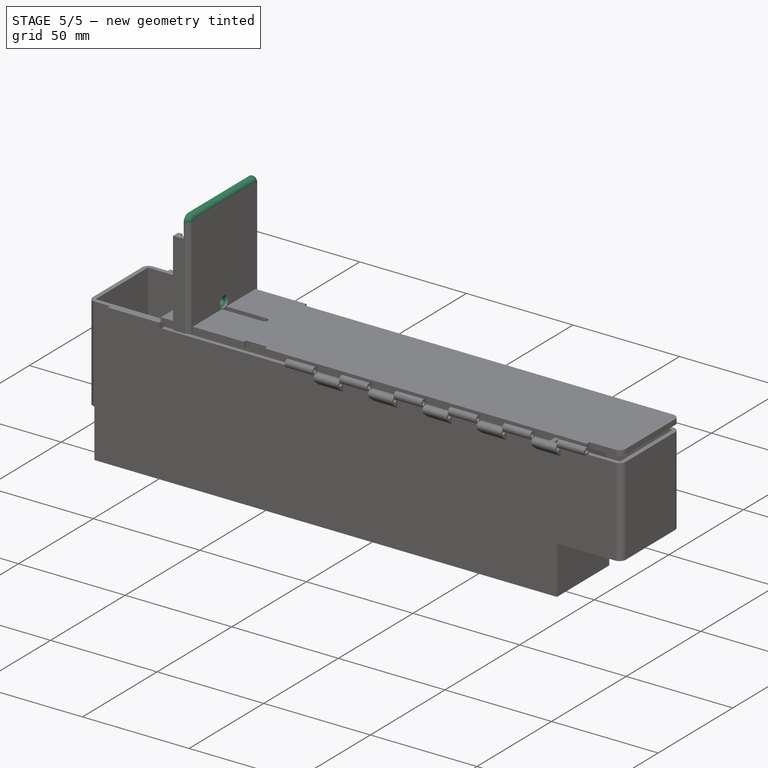
[diagram: stage 5 of 5 — iso view after this stage's code; geometry added in this stage tinted green]
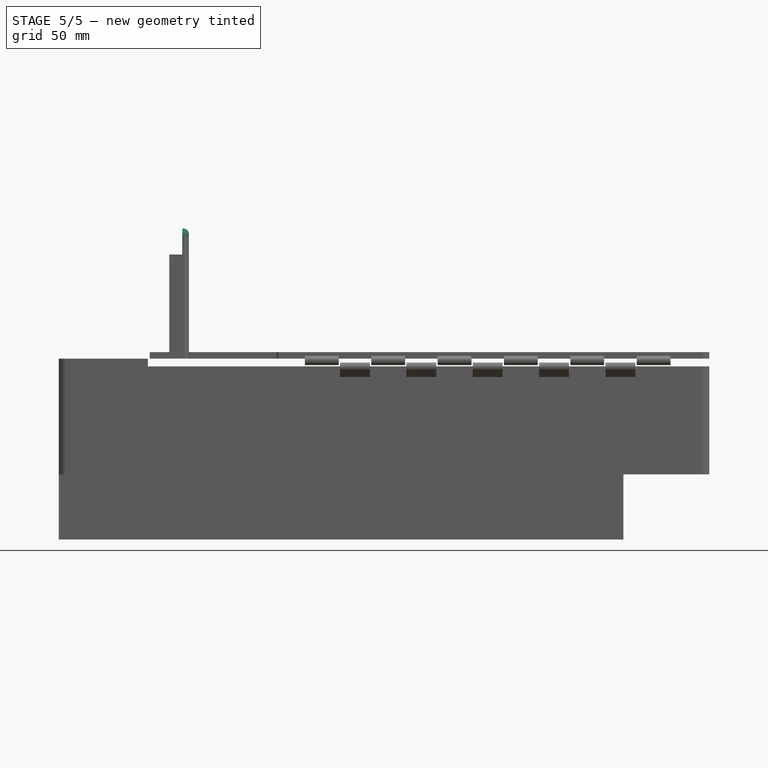
[diagram: stage 5 of 5 — front view after this stage's code; geometry added in this stage tinted green]
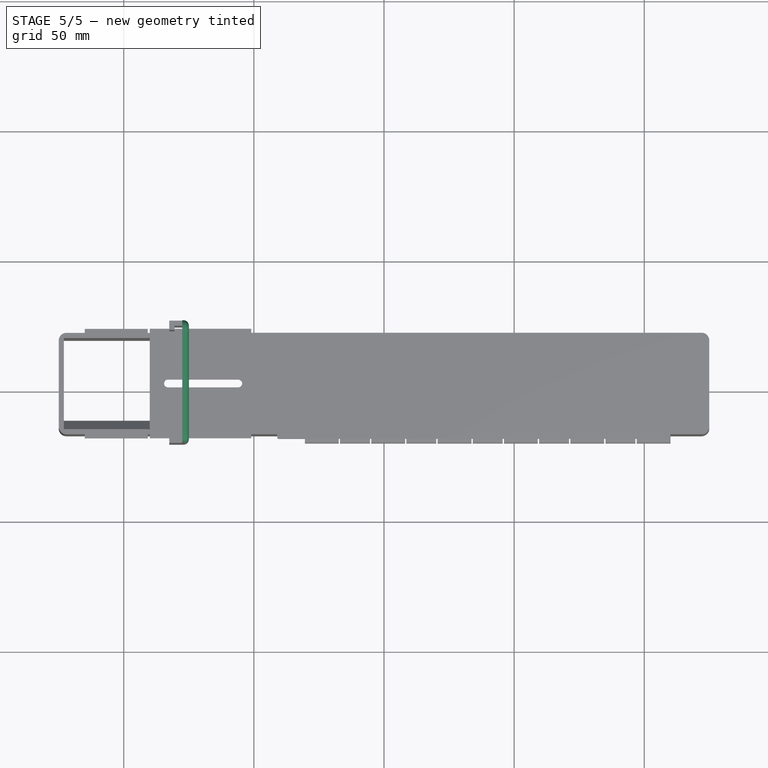
[diagram: stage 5 of 5 — top view after this stage's code; geometry added in this stage tinted green]
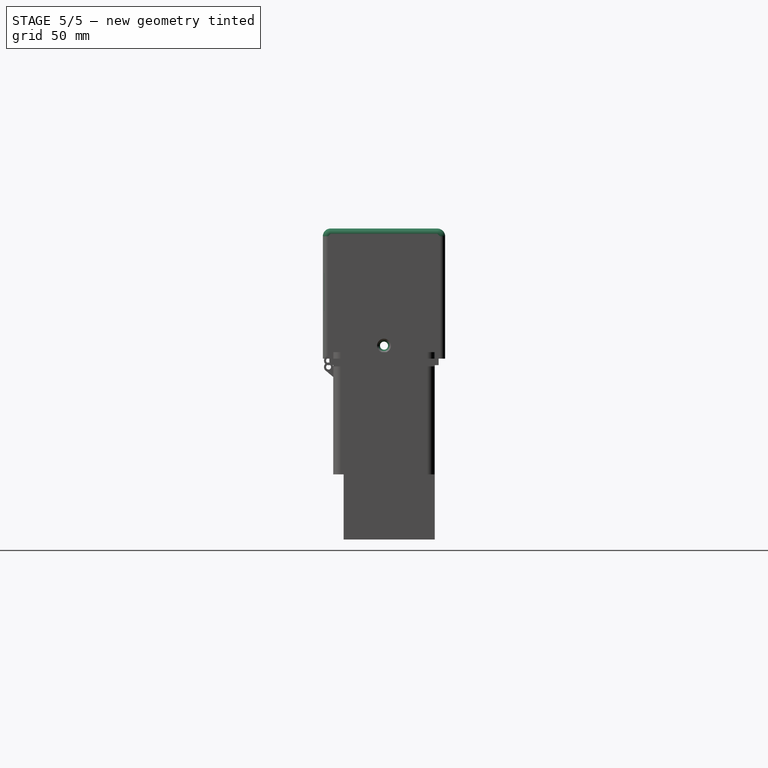
[diagram: stage 5 of 5 — right view after this stage's code; geometry added in this stage tinted green]
FEATURE [Sketcher::SketchObject] Sketch002
  ExternalGeometry = -> [Pad,Clone2D]
  FullyConstrained = true
  MapMode = 5
  Support = -> [XY_Plane]
  sketch-geometry (4):
    g0: LineSegment StartX=-75 StartY=25.5 StartZ=0 EndX=-77.5 EndY=25.5 EndZ=0
    g1: LineSegment StartX=-77.5 StartY=25.5 StartZ=0 EndX=-77.5 EndY=-21.5 EndZ=0
    g2: LineSegment StartX=-77.5 StartY=-21.5 StartZ=0 EndX=-75 EndY=-21.5 EndZ=0
    g3: LineSegment StartX=-75 StartY=-21.5 StartZ=0 EndX=-75 EndY=25.5 EndZ=0
  constraints (10):
    c: Coincident(g0,g1)
    c: Coincident(g1,g2)
    c: Coincident(g2,g3)
    c: Coincident(g3,g0)
    c: Horizontal(g0)
    c: Horizontal(g2)
    c: Vertical(g1)
    c: Coincident(g0,g-4)
    c: Vertical(g1,g-3)
    c: Coincident(g2,g-4)
FEATURE [PartDesign::Pad] Pad001
  BaseFeature = -> Pad
  Direction = (0,0,1)
  Length = 50
  Length2 = 10
  Profile = -> Sketch002
  ReferenceAxis = -> Sketch002 [N_Axis]
  Type = 0
  expr: Length = <<data>>.lidLockLength
FEATURE [PartDesign::Fillet] Fillet
  Base = -> Pad001 [Edge49,Edge33]
  BaseFeature = -> Pad001
  Radius = 3
  SupportTransform = false
  UseAllEdges = false
FEATURE [PartDesign::Fillet] Fillet001
  Base = -> Fillet [Edge36]
  BaseFeature = -> Fillet
  Radius = 2
  Refine = true
  SupportTransform = false
  UseAllEdges = false
FEATURE [Sketcher::SketchObject] Sketch003
  ExternalGeometry = -> [Fillet001]
  FullyConstrained = true
  MapMode = 5
  Placement = pos=(-75,-1.73e-14,-8.3e-15) rot=(0.57735,0.57735,0.57735;2.0944rad)
  Support = -> [Fillet001]
  sketch-geometry (2):
    g0: LineSegment StartX=2 StartY=0 StartZ=0 EndX=2 EndY=47 EndZ=0
    g1: Circle CenterX=2 CenterY=5 CenterZ=0 NormalX=0 NormalY=0 NormalZ=1 AngleXU=0 Radius=2.5
  constraints (6):
    c: PointOnObject(g0,g-1)
    c: Horizontal(g0,g-4)
    c: Symmetric(g-3,g-4,g0)
    c: PointOnObject(g1,g0)
    c: Diameter(g1) = 5
    c: DistanceY(g-4,g1) = 5
FEATURE [PartDesign::Hole] Hole
  BaseFeature = -> Fillet001
  CustomThreadClearance = 0
  Depth = 19
  DepthType = 0
  Diameter = 3.1
  DrillForDepth = false
  DrillPoint = 1
  DrillPointAngle = 118
  HoleCutCountersinkAngle = 90
  HoleCutCustomValues = false
  HoleCutDepth = 0
  HoleCutDiameter = 5.3
  HoleCutType = 10
  ModelThread = false
  Profile = -> Sketch003
  Tapered = false
  TaperedAngle = 90
  ThreadClass = 0
  ThreadDepth = 19
  ThreadDepthType = 0
  ThreadDirection = 0
  ThreadFit = 2
  ThreadSize = 8
  ThreadType = 1
  Threaded = false
  UseCustomThreadClearance = false
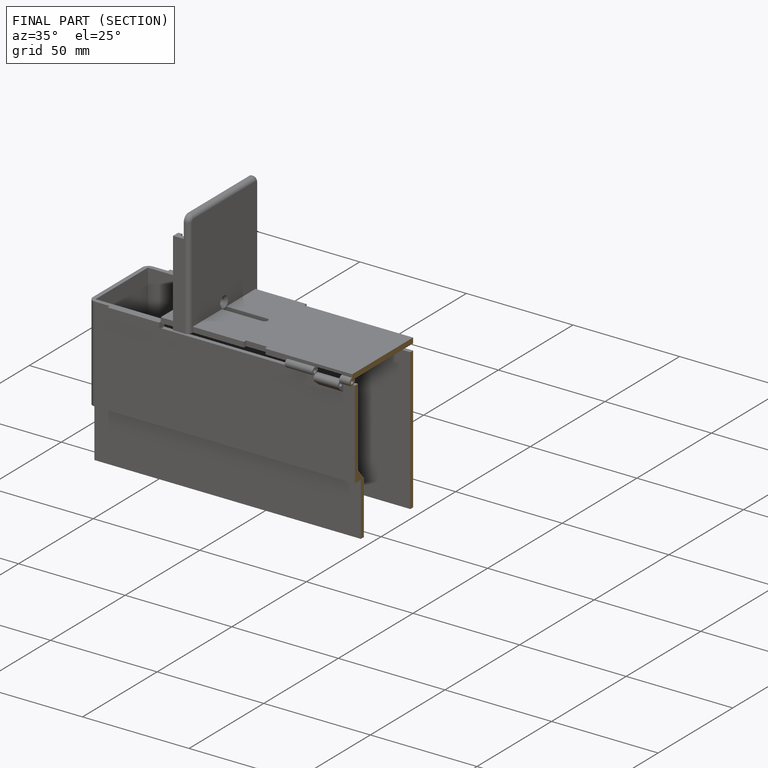
[diagram: finished part — half-section view (interior)]
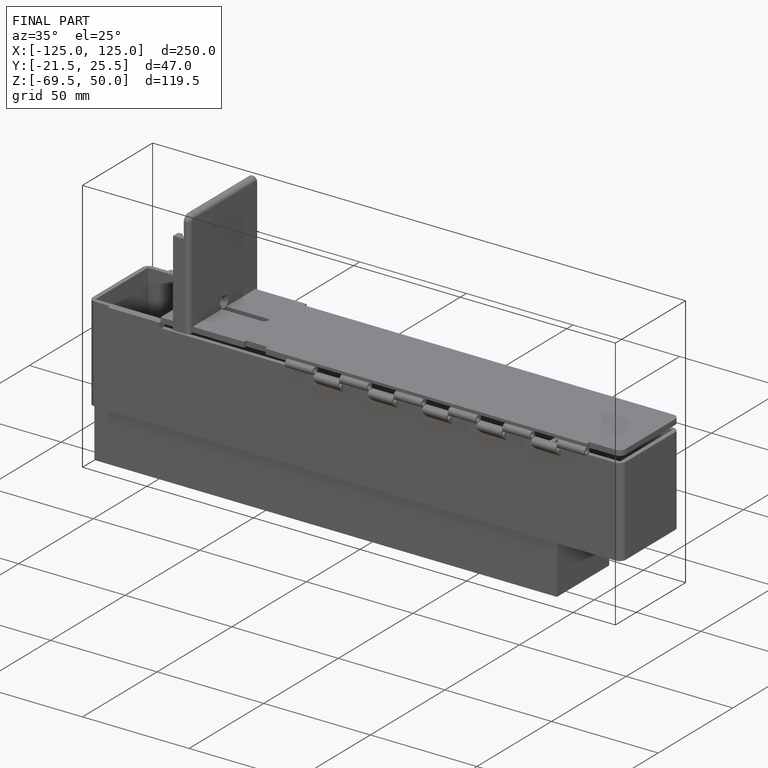
[diagram: finished part — iso view with bounding-box wireframe]
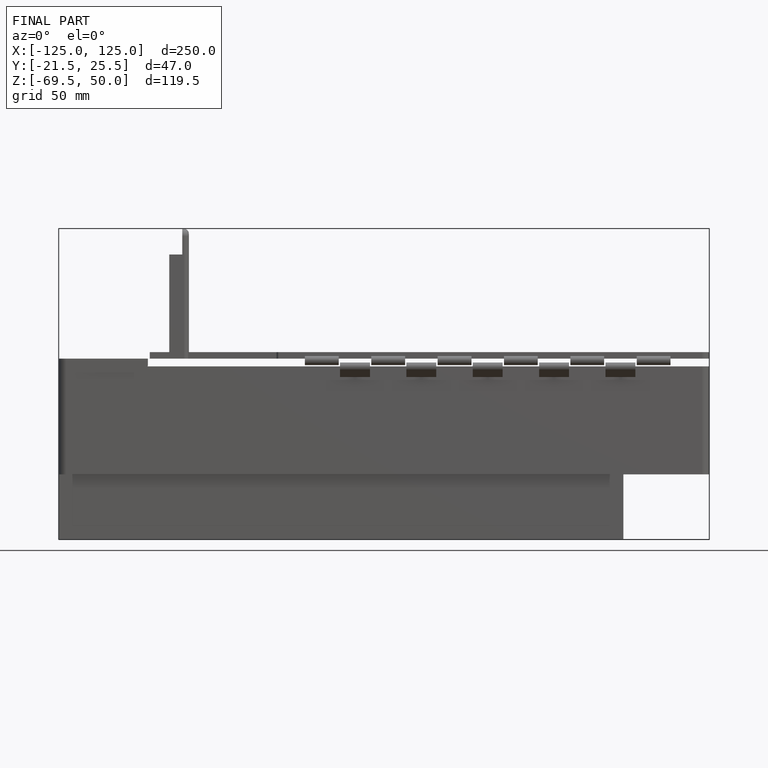
[diagram: finished part — front view with bounding-box wireframe]
